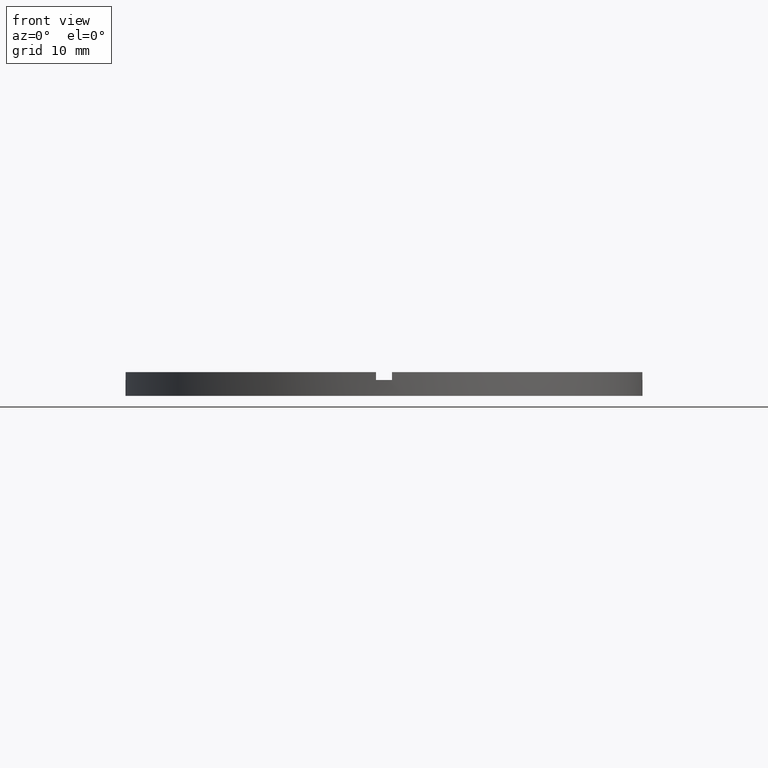
[diagram: clean part render]
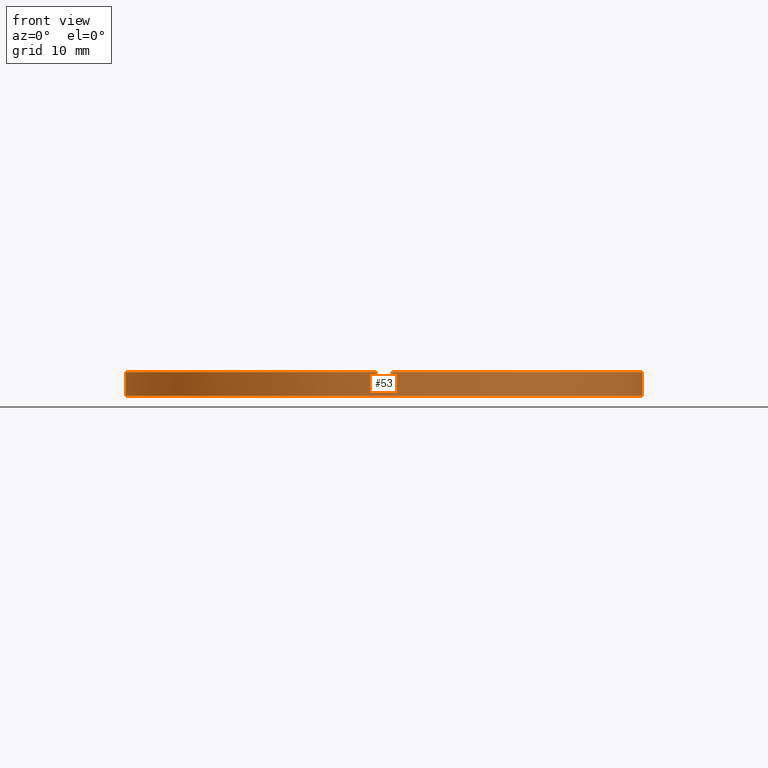
[diagram: same view with one face highlighted and labeled with its STEP entity id]
A machine part, front view. The second image highlights one B-rep face of the part: STEP entity #53.
In plain terms, the highlighted cylindrical surface (partial cylindrical patch) has radius 32.5 mm, axis along (-0, -0, -1).
Its self-contained STEP definition (entity closure, byte-faithful):
#1 = AXIS2_PLACEMENT_3D ( 'NONE', #757, #752, #563 ) ;
#12 = CYLINDRICAL_SURFACE ( 'NONE', #142, 32.50000000000000000 ) ;
#16 = CARTESIAN_POINT ( 'NONE',  ( -32.50000000000000000, 0.000000000000000000, 2.000000000000000000 ) ) ;
#22 = CARTESIAN_POINT ( 'NONE',  ( -32.50000000000000000, 0.000000000000000000, 3.000000000000000000 ) ) ;
#37 = CARTESIAN_POINT ( 'NONE',  ( -1.000000000000161426, -32.48461174156157227, 2.000000000000000000 ) ) ;
#42 = DIRECTION ( 'NONE',  ( -0.000000000000000000, -0.000000000000000000, -1.000000000000000000 ) ) ;
#44 = AXIS2_PLACEMENT_3D ( 'NONE', #399, #402, #449 ) ;
#49 = VERTEX_POINT ( 'NONE', #536 ) ;
#53 = ADVANCED_FACE ( 'NONE', ( #296 ), #12, .T. ) ;
#58 = VERTEX_POINT ( 'NONE', #16 ) ;
#59 = VECTOR ( 'NONE', #617, 1000.000000000000000 ) ;
#60 = EDGE_CURVE ( 'NONE', #422, #168, #285, .T. ) ;
#64 = CARTESIAN_POINT ( 'NONE',  ( 32.50000000000000000, 3.980102097228898626E-15, 2.000000000000000000 ) ) ;
#72 = CARTESIAN_POINT ( 'NONE',  ( 32.48461174156157227, -1.000000000000158540, 3.000000000000000000 ) ) ;
#75 = DIRECTION ( 'NONE',  ( -0.000000000000000000, 0.000000000000000000, 1.000000000000000000 ) ) ;
#85 = CARTESIAN_POINT ( 'NONE',  ( -32.48461174156157227, -1.000000000000025979, 3.000000000000000000 ) ) ;
#106 = CARTESIAN_POINT ( 'NONE',  ( -32.48461174156157227, -1.000000000000025979, 2.000000000000000000 ) ) ;
#107 = CARTESIAN_POINT ( 'NONE',  ( 0.000000000000000000, 0.000000000000000000, 0.000000000000000000 ) ) ;
#116 = LINE ( 'NONE', #437, #382 ) ;
#118 = VECTOR ( 'NONE', #771, 1000.000000000000000 ) ;
#130 = CARTESIAN_POINT ( 'NONE',  ( -32.50000000000000000, 0.000000000000000000, 0.000000000000000000 ) ) ;
#135 = EDGE_CURVE ( 'NONE', #422, #147, #279, .T. ) ;
#142 = AXIS2_PLACEMENT_3D ( 'NONE', #603, #154, #764 ) ;
#147 = VERTEX_POINT ( 'NONE', #72 ) ;
#148 = EDGE_CURVE ( 'NONE', #356, #49, #554, .T. ) ;
#154 = DIRECTION ( 'NONE',  ( -0.000000000000000000, -0.000000000000000000, -1.000000000000000000 ) ) ;
#158 = DIRECTION ( 'NONE',  ( 0.000000000000000000, 0.000000000000000000, 1.000000000000000000 ) ) ;
#159 = ORIENTED_EDGE ( 'NONE', *, *, #267, .F. ) ;
#167 = ORIENTED_EDGE ( 'NONE', *, *, #428, .T. ) ;
#168 = VERTEX_POINT ( 'NONE', #570 ) ;
#171 = ORIENTED_EDGE ( 'NONE', *, *, #606, .T. ) ;
#189 = ORIENTED_EDGE ( 'NONE', *, *, #148, .F. ) ;
#197 = AXIS2_PLACEMENT_3D ( 'NONE', #559, #75, #305 ) ;
#209 = ORIENTED_EDGE ( 'NONE', *, *, #217, .T. ) ;
#217 = EDGE_CURVE ( 'NONE', #356, #443, #308, .T. ) ;
#234 = CARTESIAN_POINT ( 'NONE',  ( 0.9999999999998386846, -32.48461174156157938, 3.000000000000000000 ) ) ;
#236 = DIRECTION ( 'NONE',  ( 1.000000000000000000, 0.000000000000000000, 0.000000000000000000 ) ) ;
#239 = DIRECTION ( 'NONE',  ( -0.000000000000000000, -0.000000000000000000, -1.000000000000000000 ) ) ;
#241 = DIRECTION ( 'NONE',  ( 0.000000000000000000, 0.000000000000000000, 1.000000000000000000 ) ) ;
#245 = CARTESIAN_POINT ( 'NONE',  ( 32.50000000000000000, 3.980102097228898626E-15, 3.000000000000000000 ) ) ;
#247 = EDGE_CURVE ( 'NONE', #364, #625, #576, .T. ) ;
#249 = DIRECTION ( 'NONE',  ( 0.000000000000000000, 0.000000000000000000, 1.000000000000000000 ) ) ;
#267 = EDGE_CURVE ( 'NONE', #58, #443, #586, .T. ) ;
#279 = CIRCLE ( 'NONE', #624, 32.50000000000000000 ) ;
#285 = LINE ( 'NONE', #234, #302 ) ;
#296 = FACE_OUTER_BOUND ( 'NONE', #548, .T. ) ;
#302 = VECTOR ( 'NONE', #239, 1000.000000000000000 ) ;
#305 = DIRECTION ( 'NONE',  ( 1.000000000000000000, 0.000000000000000000, 0.000000000000000000 ) ) ;
#308 = LINE ( 'NONE', #85, #59 ) ;
#320 = LINE ( 'NONE', #498, #374 ) ;
#333 = VERTEX_POINT ( 'NONE', #37 ) ;
#344 = CARTESIAN_POINT ( 'NONE',  ( 32.50000000000000000, 3.980102097228898626E-15, 0.000000000000000000 ) ) ;
#345 = ORIENTED_EDGE ( 'NONE', *, *, #707, .F. ) ;
#347 = EDGE_CURVE ( 'NONE', #731, #476, #643, .T. ) ;
#356 = VERTEX_POINT ( 'NONE', #511 ) ;
#364 = VERTEX_POINT ( 'NONE', #547 ) ;
#374 = VECTOR ( 'NONE', #241, 1000.000000000000000 ) ;
#380 = VECTOR ( 'NONE', #42, 1000.000000000000000 ) ;
#382 = VECTOR ( 'NONE', #249, 1000.000000000000000 ) ;
#395 = LINE ( 'NONE', #22, #118 ) ;
#399 = CARTESIAN_POINT ( 'NONE',  ( 0.000000000000000000, 0.000000000000000000, 2.000000000000000000 ) ) ;
#402 = DIRECTION ( 'NONE',  ( 0.000000000000000000, 0.000000000000000000, 1.000000000000000000 ) ) ;
#416 = AXIS2_PLACEMENT_3D ( 'NONE', #107, #158, #236 ) ;
#422 = VERTEX_POINT ( 'NONE', #681 ) ;
#428 = EDGE_CURVE ( 'NONE', #58, #731, #395, .T. ) ;
#437 = CARTESIAN_POINT ( 'NONE',  ( -1.000000000000161426, -32.48461174156157227, 3.000000000000000000 ) ) ;
#443 = VERTEX_POINT ( 'NONE', #106 ) ;
#448 = ORIENTED_EDGE ( 'NONE', *, *, #611, .F. ) ;
#449 = DIRECTION ( 'NONE',  ( 1.000000000000000000, 0.000000000000000000, 0.000000000000000000 ) ) ;
#461 = ORIENTED_EDGE ( 'NONE', *, *, #347, .T. ) ;
#462 = ORIENTED_EDGE ( 'NONE', *, *, #135, .F. ) ;
#463 = ORIENTED_EDGE ( 'NONE', *, *, #60, .T. ) ;
#476 = VERTEX_POINT ( 'NONE', #344 ) ;
#494 = DIRECTION ( 'NONE',  ( 0.000000000000000000, 0.000000000000000000, 1.000000000000000000 ) ) ;
#498 = CARTESIAN_POINT ( 'NONE',  ( 32.48461174156157227, -1.000000000000158540, 3.000000000000000000 ) ) ;
#511 = CARTESIAN_POINT ( 'NONE',  ( -32.48461174156157227, -1.000000000000025979, 3.000000000000000000 ) ) ;
#512 = DIRECTION ( 'NONE',  ( 1.000000000000000000, 0.000000000000000000, 0.000000000000000000 ) ) ;
#531 = CARTESIAN_POINT ( 'NONE',  ( 0.000000000000000000, 0.000000000000000000, 3.000000000000000000 ) ) ;
#536 = CARTESIAN_POINT ( 'NONE',  ( -1.000000000000161426, -32.48461174156157227, 3.000000000000000000 ) ) ;
#544 = AXIS2_PLACEMENT_3D ( 'NONE', #594, #494, #649 ) ;
#547 = CARTESIAN_POINT ( 'NONE',  ( 32.48461174156157227, -1.000000000000158540, 2.000000000000000000 ) ) ;
#548 = EDGE_LOOP ( 'NONE', ( #448, #711, #171, #462, #463, #345, #633, #189, #209, #159, #167, #461 ) ) ;
#554 = CIRCLE ( 'NONE', #1, 32.50000000000000000 ) ;
#559 = CARTESIAN_POINT ( 'NONE',  ( 0.000000000000000000, 0.000000000000000000, 2.000000000000000000 ) ) ;
#563 = DIRECTION ( 'NONE',  ( 1.000000000000000000, 0.000000000000000000, 0.000000000000000000 ) ) ;
#570 = CARTESIAN_POINT ( 'NONE',  ( 0.9999999999998386846, -32.48461174156157938, 2.000000000000000000 ) ) ;
#576 = CIRCLE ( 'NONE', #44, 32.50000000000000000 ) ;
#581 = DIRECTION ( 'NONE',  ( 0.000000000000000000, 0.000000000000000000, 1.000000000000000000 ) ) ;
#586 = CIRCLE ( 'NONE', #544, 32.50000000000000000 ) ;
#594 = CARTESIAN_POINT ( 'NONE',  ( 0.000000000000000000, 0.000000000000000000, 2.000000000000000000 ) ) ;
#603 = CARTESIAN_POINT ( 'NONE',  ( 0.000000000000000000, 0.000000000000000000, 3.000000000000000000 ) ) ;
#606 = EDGE_CURVE ( 'NONE', #364, #147, #320, .T. ) ;
#611 = EDGE_CURVE ( 'NONE', #625, #476, #640, .T. ) ;
#617 = DIRECTION ( 'NONE',  ( -0.000000000000000000, -0.000000000000000000, -1.000000000000000000 ) ) ;
#624 = AXIS2_PLACEMENT_3D ( 'NONE', #531, #581, #512 ) ;
#625 = VERTEX_POINT ( 'NONE', #64 ) ;
#633 = ORIENTED_EDGE ( 'NONE', *, *, #646, .T. ) ;
#640 = LINE ( 'NONE', #245, #380 ) ;
#643 = CIRCLE ( 'NONE', #416, 32.50000000000000000 ) ;
#644 = CIRCLE ( 'NONE', #197, 32.50000000000000000 ) ;
#646 = EDGE_CURVE ( 'NONE', #333, #49, #116, .T. ) ;
#649 = DIRECTION ( 'NONE',  ( 1.000000000000000000, 0.000000000000000000, 0.000000000000000000 ) ) ;
#681 = CARTESIAN_POINT ( 'NONE',  ( 0.9999999999998386846, -32.48461174156157938, 3.000000000000000000 ) ) ;
#707 = EDGE_CURVE ( 'NONE', #333, #168, #644, .T. ) ;
#711 = ORIENTED_EDGE ( 'NONE', *, *, #247, .F. ) ;
#731 = VERTEX_POINT ( 'NONE', #130 ) ;
#752 = DIRECTION ( 'NONE',  ( 0.000000000000000000, 0.000000000000000000, 1.000000000000000000 ) ) ;
#757 = CARTESIAN_POINT ( 'NONE',  ( 0.000000000000000000, 0.000000000000000000, 3.000000000000000000 ) ) ;
#764 = DIRECTION ( 'NONE',  ( -1.000000000000000000, 0.000000000000000000, 0.000000000000000000 ) ) ;
#771 = DIRECTION ( 'NONE',  ( -0.000000000000000000, -0.000000000000000000, -1.000000000000000000 ) ) ;